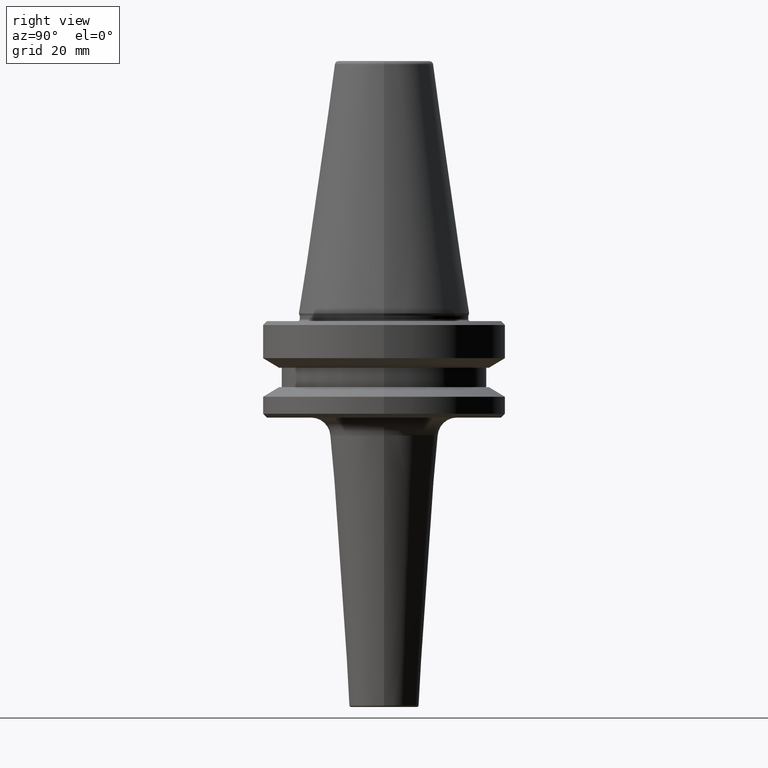
[diagram: clean part render]
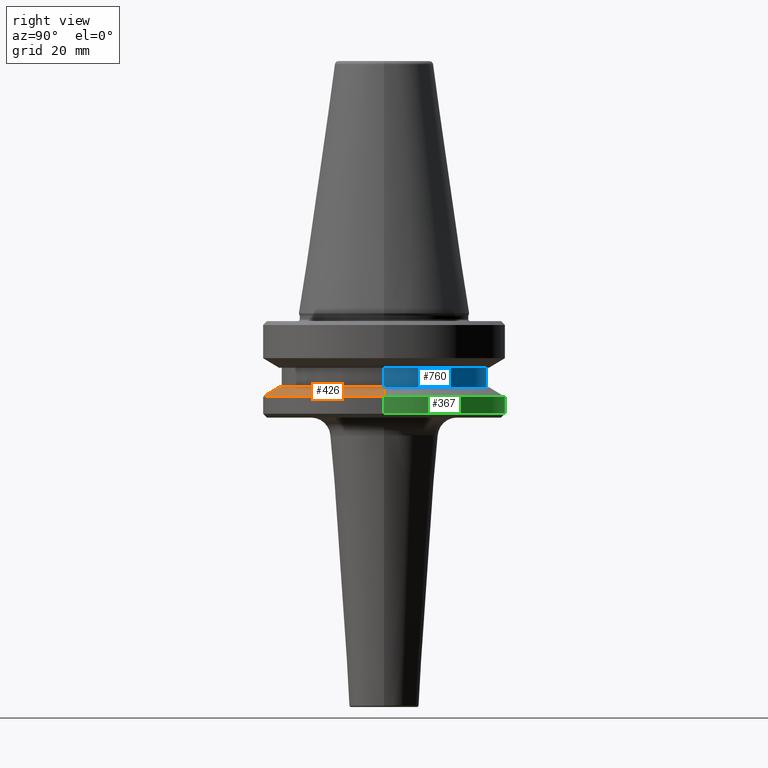
[diagram: same view with three faces highlighted in distinct colors, each labeled with its STEP entity id]
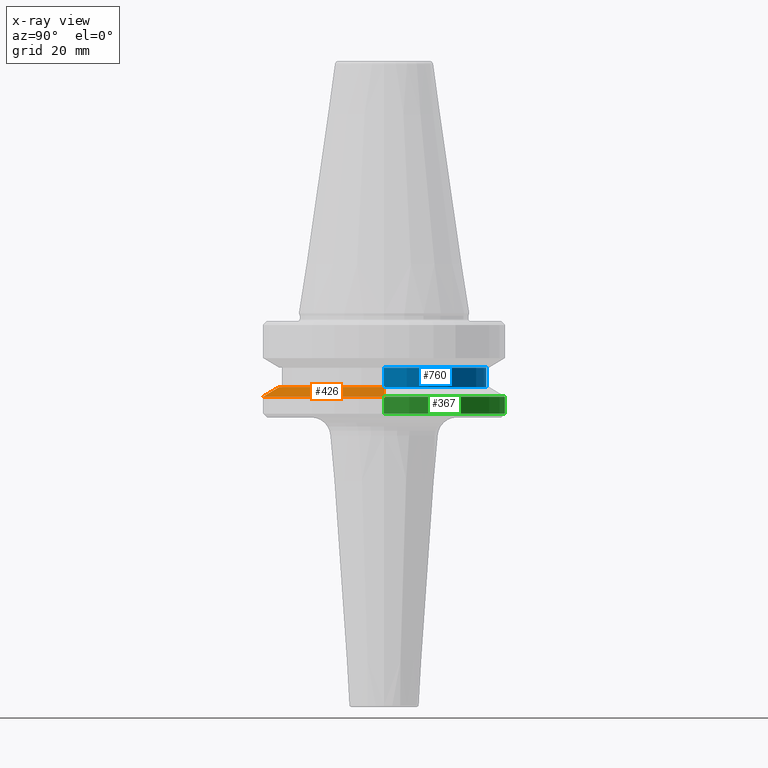
[diagram: x-ray of the same camera — body ghosted, the three highlighted faces saturated]
A machine part, right view with three faces highlighted in distinct colors.
The next image is the same camera in x-ray (body ghosted, the three faces saturated) — at least one of them is partly hidden behind the body in this view.
Their STEP definitions:

[orange] entity #426 — the highlighted conical surface has half-angle 60 deg.
#44 = FACE_OUTER_BOUND ( 'NONE', #318, .T. ) ;
#116 = VECTOR ( 'NONE', #281, 1000.000000000000000 ) ;
#124 = DIRECTION ( 'NONE',  ( 1.000000000000000000, 0.0000000000000000000, 0.0000000000000000000 ) ) ;
#155 = CARTESIAN_POINT ( 'NONE',  ( 0.0000000000000000000, 0.0000000000000000000, -87.00014200631733300 ) ) ;
#170 = CARTESIAN_POINT ( 'NONE',  ( 0.0000000000000000000, 0.0000000000000000000, -84.50000000000068200 ) ) ;
#216 = EDGE_CURVE ( 'NONE', #229, #799, #780, .T. ) ;
#220 = CARTESIAN_POINT ( 'NONE',  ( 0.0000000000000000000, 0.0000000000000000000, -87.00014200631733300 ) ) ;
#224 = ORIENTED_EDGE ( 'NONE', *, *, #449, .T. ) ;
#226 = DIRECTION ( 'NONE',  ( -0.8660254037844332700, 0.0000000000000000000, -0.5000000000000093300 ) ) ;
#229 = VERTEX_POINT ( 'NONE', #468 ) ;
#231 = CONICAL_SURFACE ( 'NONE', #984, 31.50000000000008500, 1.047197551196587000 ) ;
#281 = DIRECTION ( 'NONE',  ( 0.8660254037844332700, 1.060575238724900300E-016, -0.5000000000000093300 ) ) ;
#290 = ORIENTED_EDGE ( 'NONE', *, *, #385, .T. ) ;
#293 = DIRECTION ( 'NONE',  ( -0.0000000000000000000, -0.0000000000000000000, 1.000000000000000000 ) ) ;
#316 = CARTESIAN_POINT ( 'NONE',  ( -31.50000000000008500, 3.857637417314172900E-015, -87.00014200631733300 ) ) ;
#318 = EDGE_LOOP ( 'NONE', ( #606, #469, #224, #290 ) ) ;
#333 = CARTESIAN_POINT ( 'NONE',  ( -27.16962701892256100, 0.0000000000000000000, -84.50000000000068200 ) ) ;
#353 = DIRECTION ( 'NONE',  ( 1.000000000000000000, 0.0000000000000000000, 0.0000000000000000000 ) ) ;
#385 = EDGE_CURVE ( 'NONE', #816, #799, #870, .T. ) ;
#426 = ADVANCED_FACE ( 'NONE', ( #44 ), #231, .T. ) ;
#449 = EDGE_CURVE ( 'NONE', #903, #816, #898, .T. ) ;
#468 = CARTESIAN_POINT ( 'NONE',  ( 27.16962701892256100, 3.592478546794633900E-015, -84.50000000000068200 ) ) ;
#469 = ORIENTED_EDGE ( 'NONE', *, *, #492, .F. ) ;
#492 = EDGE_CURVE ( 'NONE', #903, #229, #1044, .T. ) ;
#504 = AXIS2_PLACEMENT_3D ( 'NONE', #220, #293, #124 ) ;
#606 = ORIENTED_EDGE ( 'NONE', *, *, #216, .F. ) ;
#629 = VECTOR ( 'NONE', #226, 1000.000000000000000 ) ;
#678 = DIRECTION ( 'NONE',  ( -0.0000000000000000000, -0.0000000000000000000, 1.000000000000000000 ) ) ;
#732 = DIRECTION ( 'NONE',  ( -1.000000000000000000, 0.0000000000000000000, 0.0000000000000000000 ) ) ;
#736 = DIRECTION ( 'NONE',  ( 0.0000000000000000000, 0.0000000000000000000, -1.000000000000000000 ) ) ;
#780 = LINE ( 'NONE', #989, #116 ) ;
#784 = CARTESIAN_POINT ( 'NONE',  ( -31.50000000000008500, 0.0000000000000000000, -87.00014200631733300 ) ) ;
#799 = VERTEX_POINT ( 'NONE', #936 ) ;
#816 = VERTEX_POINT ( 'NONE', #316 ) ;
#870 = CIRCLE ( 'NONE', #504, 31.50000000000008500 ) ;
#898 = LINE ( 'NONE', #784, #629 ) ;
#903 = VERTEX_POINT ( 'NONE', #333 ) ;
#936 = CARTESIAN_POINT ( 'NONE',  ( 31.50000000000008500, 0.0000000000000000000, -87.00014200631733300 ) ) ;
#984 = AXIS2_PLACEMENT_3D ( 'NONE', #155, #736, #732 ) ;
#989 = CARTESIAN_POINT ( 'NONE',  ( 31.50000000000008500, 3.857637417314172900E-015, -87.00014200631733300 ) ) ;
#1032 = AXIS2_PLACEMENT_3D ( 'NONE', #170, #678, #353 ) ;
#1044 = CIRCLE ( 'NONE', #1032, 27.16962701892256100 ) ;

[blue] entity #760 — the highlighted cylindrical surface (partial cylindrical patch) has radius 26.5 mm, axis along (-0, -0, 1).
#1 = AXIS2_PLACEMENT_3D ( 'NONE', #465, #622, #132 ) ;
#37 = LINE ( 'NONE', #523, #889 ) ;
#59 = CARTESIAN_POINT ( 'NONE',  ( 0.0000000000000000000, 0.0000000000000000000, -79.50000000000012800 ) ) ;
#73 = EDGE_CURVE ( 'NONE', #459, #233, #938, .T. ) ;
#80 = ORIENTED_EDGE ( 'NONE', *, *, #73, .T. ) ;
#132 = DIRECTION ( 'NONE',  ( 1.000000000000000000, 0.0000000000000000000, 0.0000000000000000000 ) ) ;
#178 = DIRECTION ( 'NONE',  ( -0.0000000000000000000, -0.0000000000000000000, 1.000000000000000000 ) ) ;
#215 = DIRECTION ( 'NONE',  ( -0.0000000000000000000, -0.0000000000000000000, 1.000000000000000000 ) ) ;
#233 = VERTEX_POINT ( 'NONE', #897 ) ;
#254 = CARTESIAN_POINT ( 'NONE',  ( 26.50000000000019200, 0.0000000000000000000, -84.50000000000068200 ) ) ;
#292 = AXIS2_PLACEMENT_3D ( 'NONE', #856, #976, #439 ) ;
#364 = EDGE_CURVE ( 'NONE', #459, #533, #37, .T. ) ;
#368 = DIRECTION ( 'NONE',  ( -0.0000000000000000000, -0.0000000000000000000, 1.000000000000000000 ) ) ;
#413 = DIRECTION ( 'NONE',  ( 1.000000000000000000, 0.0000000000000000000, 0.0000000000000000000 ) ) ;
#423 = CARTESIAN_POINT ( 'NONE',  ( 26.50000000000019200, 0.0000000000000000000, -79.50000000000012800 ) ) ;
#439 = DIRECTION ( 'NONE',  ( 1.000000000000000000, 0.0000000000000000000, 0.0000000000000000000 ) ) ;
#452 = CARTESIAN_POINT ( 'NONE',  ( -26.50000000000019200, 3.245314017740509400E-015, 6.357346922996331500 ) ) ;
#459 = VERTEX_POINT ( 'NONE', #254 ) ;
#461 = AXIS2_PLACEMENT_3D ( 'NONE', #59, #178, #413 ) ;
#465 = CARTESIAN_POINT ( 'NONE',  ( 0.0000000000000000000, 0.0000000000000000000, -84.50000000000068200 ) ) ;
#471 = ORIENTED_EDGE ( 'NONE', *, *, #364, .F. ) ;
#523 = CARTESIAN_POINT ( 'NONE',  ( 26.50000000000019200, 0.0000000000000000000, 6.357346922996331500 ) ) ;
#533 = VERTEX_POINT ( 'NONE', #423 ) ;
#578 = VERTEX_POINT ( 'NONE', #751 ) ;
#594 = CIRCLE ( 'NONE', #461, 26.50000000000019200 ) ;
#597 = EDGE_LOOP ( 'NONE', ( #80, #879, #742, #471 ) ) ;
#622 = DIRECTION ( 'NONE',  ( -0.0000000000000000000, -0.0000000000000000000, 1.000000000000000000 ) ) ;
#648 = FACE_OUTER_BOUND ( 'NONE', #597, .T. ) ;
#651 = VECTOR ( 'NONE', #368, 1000.000000000000000 ) ;
#742 = ORIENTED_EDGE ( 'NONE', *, *, #832, .F. ) ;
#751 = CARTESIAN_POINT ( 'NONE',  ( -26.50000000000019200, 3.245314017740509400E-015, -79.50000000000012800 ) ) ;
#760 = ADVANCED_FACE ( 'NONE', ( #648 ), #837, .T. ) ;
#832 = EDGE_CURVE ( 'NONE', #533, #578, #594, .T. ) ;
#837 = CYLINDRICAL_SURFACE ( 'NONE', #292, 26.50000000000019200 ) ;
#856 = CARTESIAN_POINT ( 'NONE',  ( 0.0000000000000000000, 0.0000000000000000000, 6.357346922996331500 ) ) ;
#874 = LINE ( 'NONE', #452, #651 ) ;
#879 = ORIENTED_EDGE ( 'NONE', *, *, #980, .T. ) ;
#889 = VECTOR ( 'NONE', #215, 1000.000000000000000 ) ;
#897 = CARTESIAN_POINT ( 'NONE',  ( -26.50000000000019200, 3.245314017740509400E-015, -84.50000000000068200 ) ) ;
#938 = CIRCLE ( 'NONE', #1, 26.50000000000019200 ) ;
#976 = DIRECTION ( 'NONE',  ( -0.0000000000000000000, -0.0000000000000000000, 1.000000000000000000 ) ) ;
#980 = EDGE_CURVE ( 'NONE', #233, #578, #874, .T. ) ;

[green] entity #367 — the highlighted cylindrical surface (partial cylindrical patch) has radius 31.5 mm, axis along (-0, -0, 1).
#8 = FACE_OUTER_BOUND ( 'NONE', #904, .T. ) ;
#16 = CIRCLE ( 'NONE', #935, 31.50000000000008500 ) ;
#61 = VECTOR ( 'NONE', #671, 1000.000000000000000 ) ;
#88 = EDGE_CURVE ( 'NONE', #799, #816, #887, .T. ) ;
#93 = EDGE_CURVE ( 'NONE', #436, #799, #262, .T. ) ;
#109 = DIRECTION ( 'NONE',  ( 1.000000000000000000, 0.0000000000000000000, 0.0000000000000000000 ) ) ;
#147 = VERTEX_POINT ( 'NONE', #677 ) ;
#262 = LINE ( 'NONE', #978, #61 ) ;
#313 = DIRECTION ( 'NONE',  ( -0.0000000000000000000, -0.0000000000000000000, 1.000000000000000000 ) ) ;
#316 = CARTESIAN_POINT ( 'NONE',  ( -31.50000000000008500, 3.857637417314172900E-015, -87.00014200631733300 ) ) ;
#367 = ADVANCED_FACE ( 'NONE', ( #8 ), #649, .T. ) ;
#399 = ORIENTED_EDGE ( 'NONE', *, *, #88, .F. ) ;
#417 = CARTESIAN_POINT ( 'NONE',  ( 31.50000000000008500, 0.0000000000000000000, -91.40000000000037500 ) ) ;
#425 = EDGE_CURVE ( 'NONE', #436, #147, #16, .T. ) ;
#436 = VERTEX_POINT ( 'NONE', #417 ) ;
#457 = VECTOR ( 'NONE', #313, 1000.000000000000000 ) ;
#534 = DIRECTION ( 'NONE',  ( -0.0000000000000000000, -0.0000000000000000000, 1.000000000000000000 ) ) ;
#535 = CARTESIAN_POINT ( 'NONE',  ( 0.0000000000000000000, 0.0000000000000000000, -87.00014200631733300 ) ) ;
#555 = CARTESIAN_POINT ( 'NONE',  ( 0.0000000000000000000, 0.0000000000000000000, -91.40000000000037500 ) ) ;
#561 = AXIS2_PLACEMENT_3D ( 'NONE', #981, #687, #109 ) ;
#623 = ORIENTED_EDGE ( 'NONE', *, *, #425, .T. ) ;
#630 = DIRECTION ( 'NONE',  ( 1.000000000000000000, 0.0000000000000000000, 0.0000000000000000000 ) ) ;
#649 = CYLINDRICAL_SURFACE ( 'NONE', #561, 31.50000000000008500 ) ;
#671 = DIRECTION ( 'NONE',  ( -0.0000000000000000000, -0.0000000000000000000, 1.000000000000000000 ) ) ;
#672 = EDGE_CURVE ( 'NONE', #147, #816, #673, .T. ) ;
#673 = LINE ( 'NONE', #752, #457 ) ;
#677 = CARTESIAN_POINT ( 'NONE',  ( -31.50000000000008500, 3.857637417314172900E-015, -91.40000000000037500 ) ) ;
#687 = DIRECTION ( 'NONE',  ( -0.0000000000000000000, -0.0000000000000000000, 1.000000000000000000 ) ) ;
#752 = CARTESIAN_POINT ( 'NONE',  ( -31.50000000000008500, 3.857637417314172900E-015, 6.357346922996331500 ) ) ;
#799 = VERTEX_POINT ( 'NONE', #936 ) ;
#813 = AXIS2_PLACEMENT_3D ( 'NONE', #535, #534, #861 ) ;
#816 = VERTEX_POINT ( 'NONE', #316 ) ;
#825 = DIRECTION ( 'NONE',  ( -0.0000000000000000000, -0.0000000000000000000, 1.000000000000000000 ) ) ;
#835 = ORIENTED_EDGE ( 'NONE', *, *, #93, .F. ) ;
#861 = DIRECTION ( 'NONE',  ( 1.000000000000000000, 0.0000000000000000000, 0.0000000000000000000 ) ) ;
#887 = CIRCLE ( 'NONE', #813, 31.50000000000008500 ) ;
#904 = EDGE_LOOP ( 'NONE', ( #623, #1036, #399, #835 ) ) ;
#935 = AXIS2_PLACEMENT_3D ( 'NONE', #555, #825, #630 ) ;
#936 = CARTESIAN_POINT ( 'NONE',  ( 31.50000000000008500, 0.0000000000000000000, -87.00014200631733300 ) ) ;
#978 = CARTESIAN_POINT ( 'NONE',  ( 31.50000000000008500, 0.0000000000000000000, 6.357346922996331500 ) ) ;
#981 = CARTESIAN_POINT ( 'NONE',  ( 0.0000000000000000000, 0.0000000000000000000, 6.357346922996331500 ) ) ;
#1036 = ORIENTED_EDGE ( 'NONE', *, *, #672, .T. ) ;